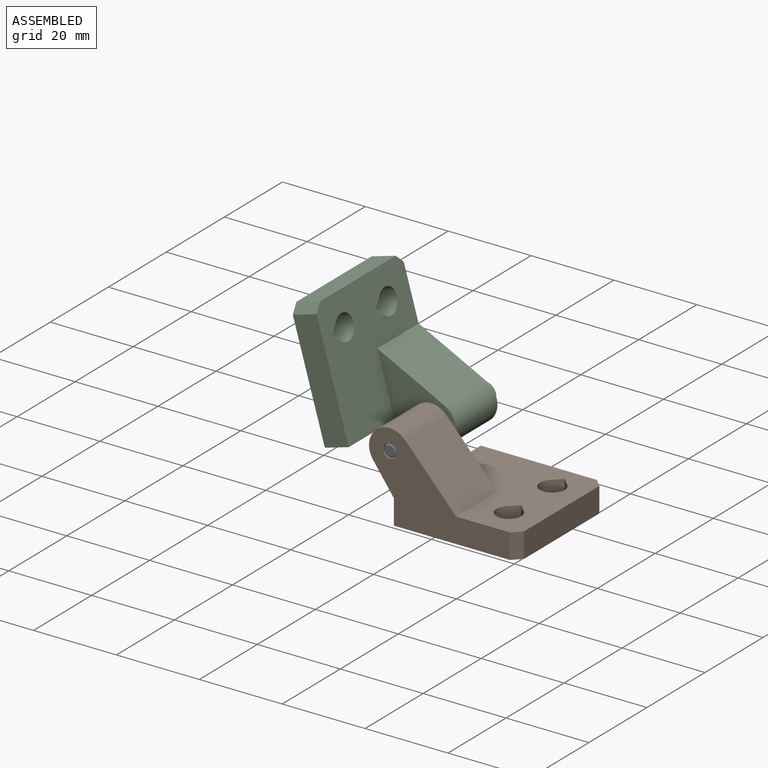
[diagram: assembled view]
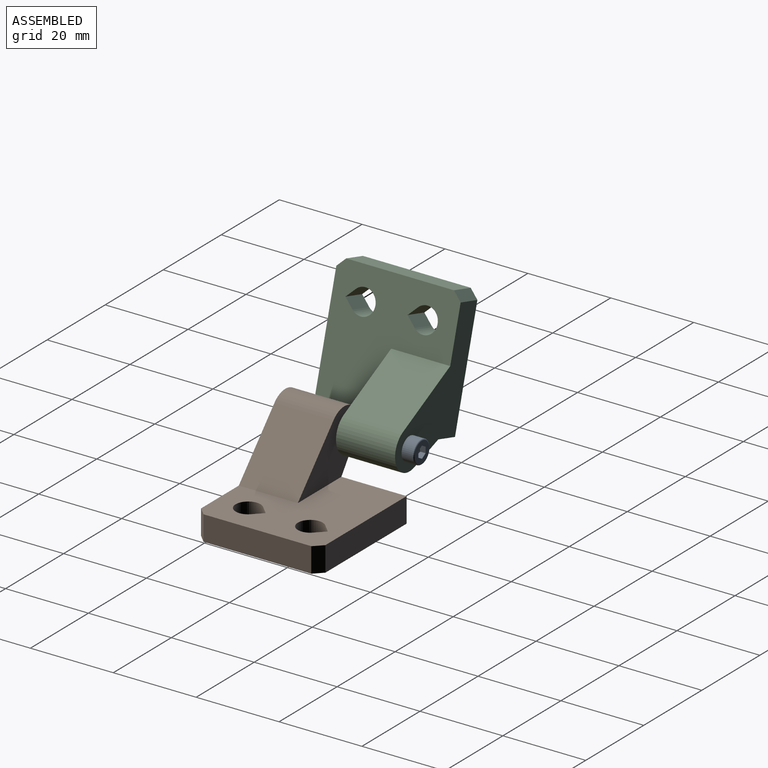
[diagram: assembled view, second angle]
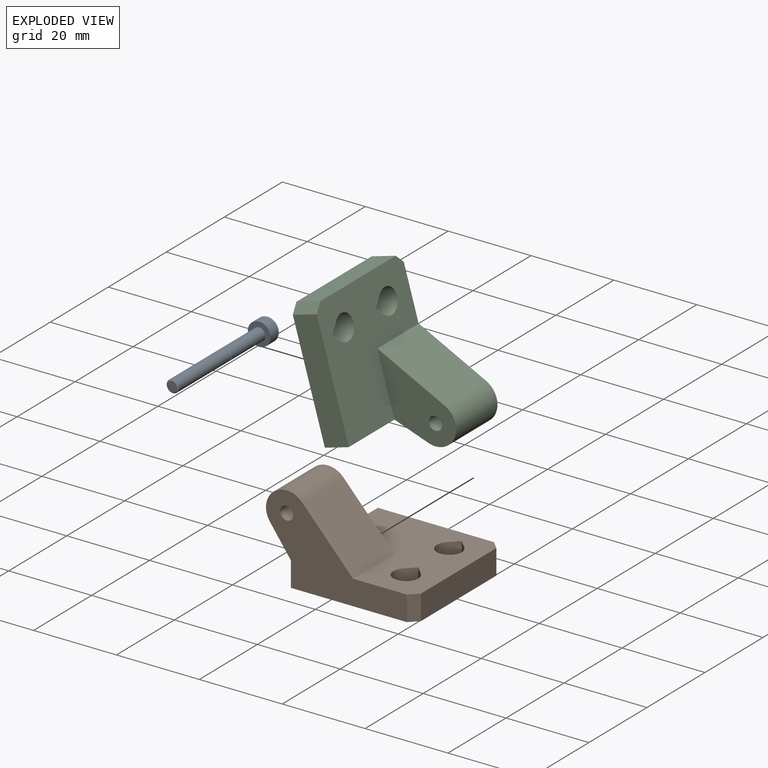
[diagram: exploded view]
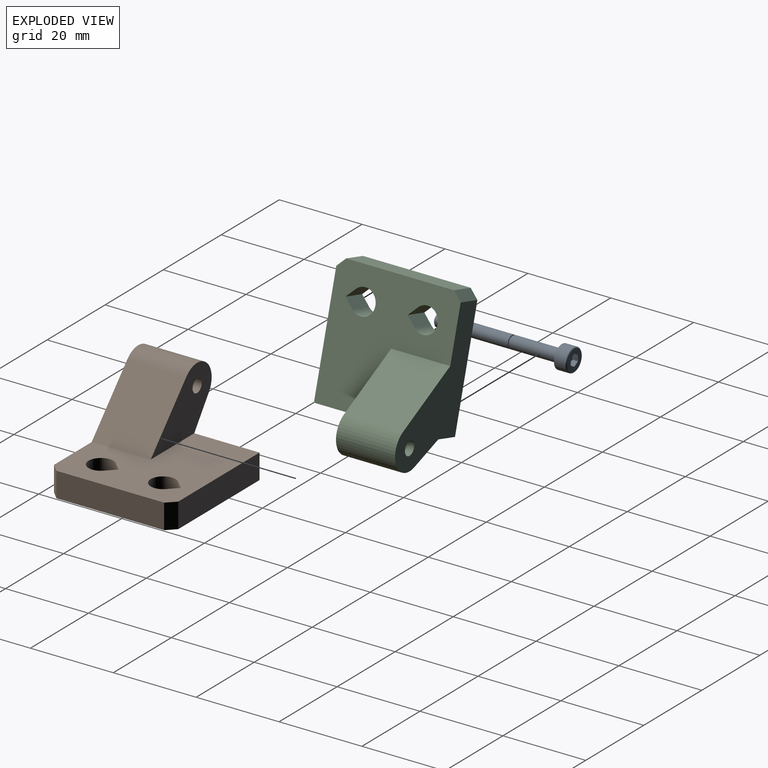
[diagram: exploded view, second angle]
ASSEMBLY  parts=3 mates=3
PART A: 17 faces, bbox 6x6x33 mm
  f0: cylinder r=2.75mm len=5.5mm, axis (0,0,-1), area 47.1mm2, adj f1,f16
  f1: torus R=2.48mm, axis (0,0,-1), area 7.2mm2, adj f0,f15
  f2: cone r=1.36mm half-angle=45deg, axis (0,0,1), area 3.3mm2, adj f3,f14
  f3: cylinder r=1.5mm len=17.73mm, axis (0,0,-1), area 167.1mm2, adj f2,f13
  f4: cone r=1.36mm half-angle=45deg, axis (0,0,1), area 3.3mm2, adj f5,f13
  f5: cylinder r=1.5mm len=11.73mm, axis (0,0,-1), area 110.5mm2, adj f4,f16
  f6: cone r=0.72mm half-angle=60deg, axis (0,0,1), area 6.2mm2, adj f7,f8,f9,f10,f11,f12
  f7: plane 1.47x1.25mm, normal (0.87,0.5,0), area 2mm2, adj f6,f8,f12,f15
  f8: plane 1.47x1.44mm, normal (0,1,0), area 2mm2, adj f6,f7,f9,f15
  f9: plane 1.47x1.25mm, normal (-0.87,0.5,0), area 2mm2, adj f6,f8,f10,f15
  f10: plane 1.47x1.25mm, normal (-0.87,-0.5,0), area 2mm2, adj f6,f9,f11,f15
  f11: plane 1.44x1.43mm, normal (0,-1,0), area 2mm2, adj f6,f10,f12,f15
  f12: plane 1.47x1.25mm, normal (0.87,-0.5,0), area 2mm2, adj f6,f7,f11,f15
  f13: plane 3x3mm, normal (0,0,1), area 2.3mm2, adj f3,f4
  f14: plane 2.46x2.46mm, normal (0,0,-1), area 4.7mm2, adj f2
  f15: plane 4.95x4.95mm, normal (0,0,1), area 13.8mm2, adj f1,f7,f8,f9,f10,f11,f12
  f16: plane 5.5x5.5mm, normal (0,0,-1), area 16.7mm2, adj f0,f5
PART B: 19 faces, bbox 36x30x21 mm
  f0: plane 30x30mm, normal (0,0,1), area 621.8mm2, adj f2,f3,f4,f5,f7,f9,f11,f12
  f1: plane 30x30mm, normal (0,0,-1), area 835.6mm2, adj f2,f3,f4,f5,f11,f12,f13,f14
  f2: plane 30x6mm, normal (-1,0,0), area 180mm2, adj f0,f1,f3,f5,f6
  f3: plane 34x21mm, normal (0,-1,0), area 340mm2, adj f0,f1,f2,f6,f7,f8,f10,f17
  f4: plane 26x6mm, normal (1,0,0), area 156mm2, adj f0,f1,f17,f18
  f5: plane 28x6mm, normal (0,1,0), area 168mm2, adj f0,f1,f2,f18
  f6: plane 14.25x7.09mm, normal (-0.81,0,-0.58), area 124.2mm2, adj f2,f3,f8,f9
  f7: plane 14.25x13.39mm, normal (0.74,0,0.68), area 259.3mm2, adj f0,f3,f8,f9
  f8: cylinder r=5mm len=14.25mm, axis (0,-1,0), area 215mm2, adj f3,f6,f7,f9
  f9: plane 21x15mm, normal (0,1,0), area 172mm2, adj f0,f6,f7,f8,f10
  f10: cylinder r=1.6mm len=14.25mm, axis (0,1,0), area 143.3mm2, adj f3,f9
  f11: plane 6x2.12mm, normal (0.71,-0.71,0), area 18mm2, adj f0,f1,f12,f13
  f12: cylinder r=3mm len=6mm, axis (0,0,1), area 84.8mm2, adj f0,f1,f11,f13
  f13: plane 6x2.12mm, normal (-0.71,-0.71,0), area 18mm2, adj f0,f1,f11,f12
  f14: plane 6x2.12mm, normal (0.71,-0.71,0), area 18mm2, adj f0,f1,f15,f16
  f15: cylinder r=3mm len=6mm, axis (0,0,1), area 84.8mm2, adj f0,f1,f14,f16
  f16: plane 6x2.12mm, normal (-0.71,-0.71,0), area 18mm2, adj f0,f1,f14,f15
  f17: plane 6x2mm, normal (0.71,-0.71,0), area 17mm2, adj f0,f1,f3,f4
  f18: plane 6x2mm, normal (0.71,0.71,0), area 17mm2, adj f0,f1,f4,f5
PART C: same geometry as B
PLACE A rot(axis=(-0.93,0.26,0.26),94deg) t=(-9.33,8.95,8.83)mm
PLACE B t=(-8.33,-6.05,-7.17)mm fixed
PLACE C rot(axis=(-0.6,0,-0.8),180deg) t=(-24.99,-6.05,5.38)mm
MATE cylindrical C.f8 <-> B.f8  axis (0,1,0) through (-9.33,8.95,8.83)mm
MATE planar C.f3 <-> B.f5  axis (0,1,0) through (-19.86,8.95,15.51)mm
MATE revolute A.f1 <-> C.f8  axis (0,-1,0) through (-9.33,8.95,8.83)mm
